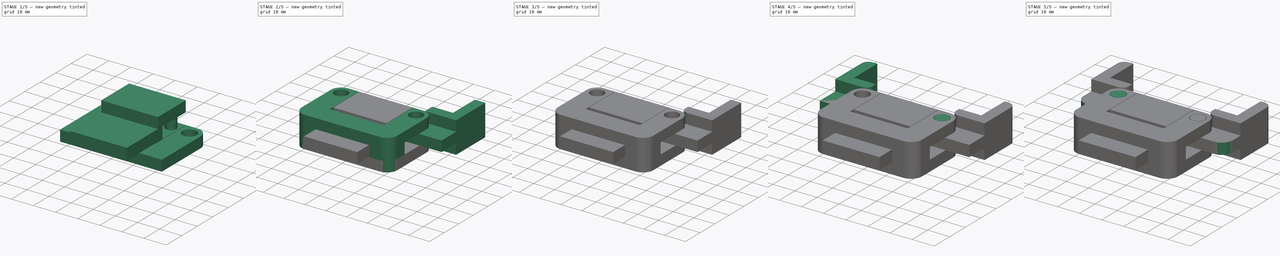
[diagram: build sequence overview — one tinted view per stage of 5, left to right]
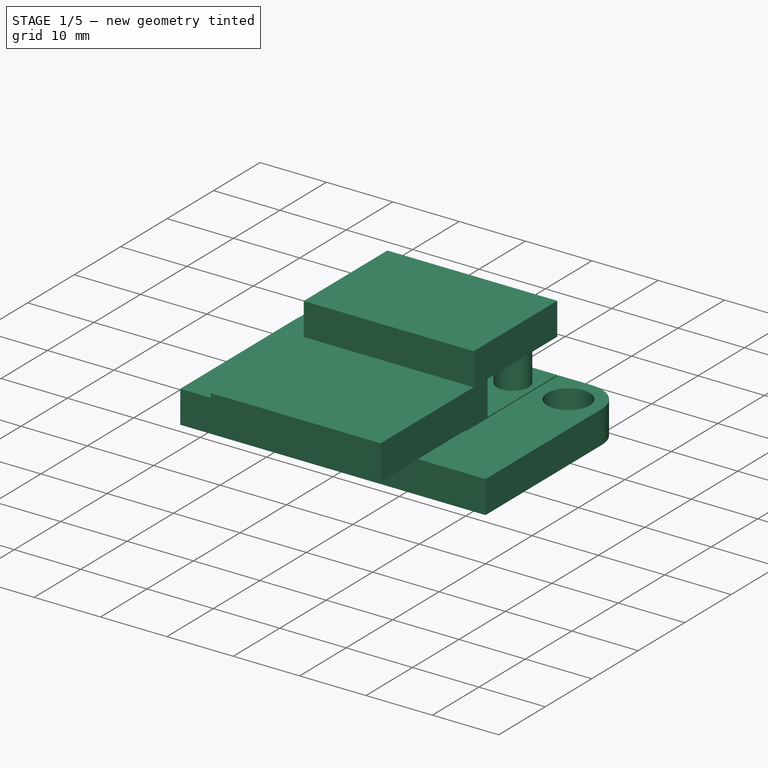
[diagram: stage 1 of 5 — iso view after this stage's code; geometry added in this stage tinted green]
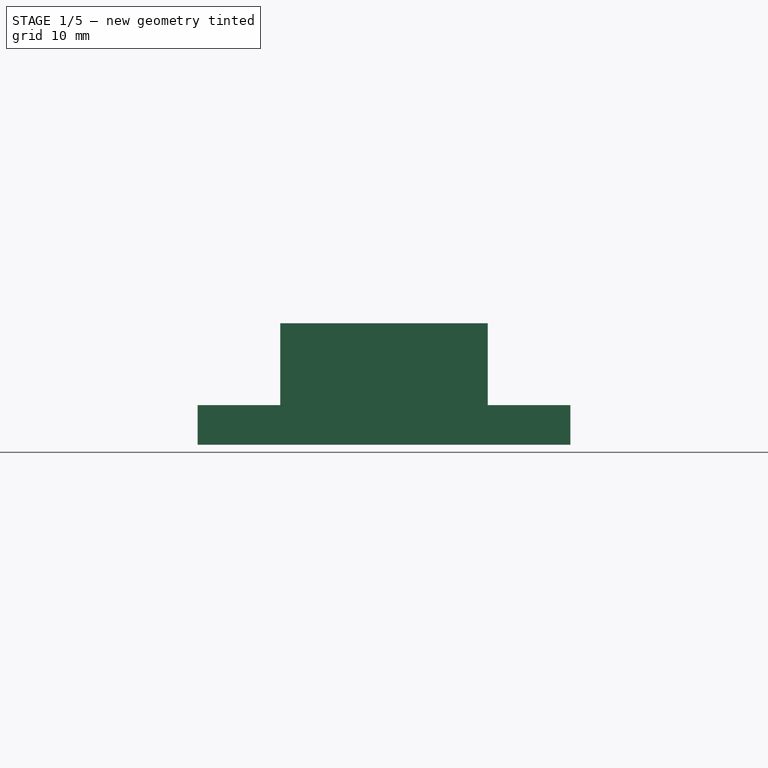
[diagram: stage 1 of 5 — front view after this stage's code; geometry added in this stage tinted green]
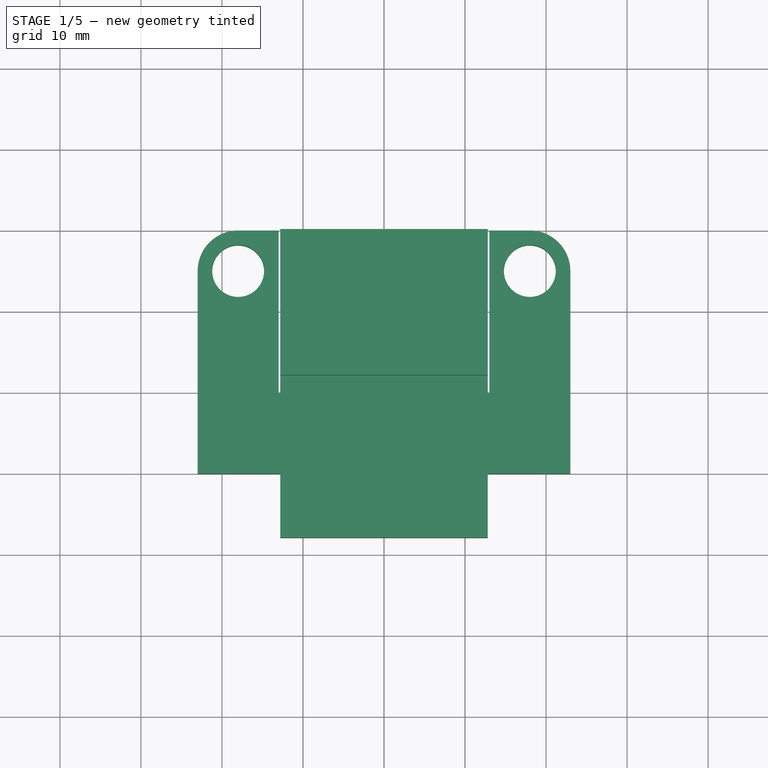
[diagram: stage 1 of 5 — top view after this stage's code; geometry added in this stage tinted green]
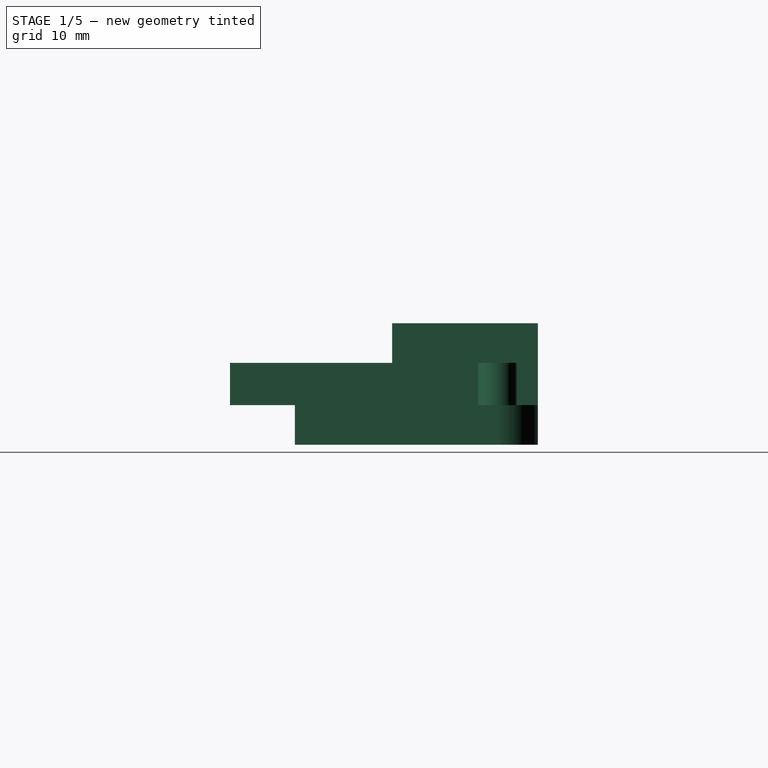
[diagram: stage 1 of 5 — right view after this stage's code; geometry added in this stage tinted green]
FCSTD DOCUMENT  (FreeCAD 0.15R4671 (Git))
Label: Claw
License: All rights reserved
LicenseURL: http://en.wikipedia.org/wiki/All_rights_reserved
objects: Sketcher::SketchObject×12, PartDesign::Pad×11, PartDesign::Fillet×6, Part::Cylinder×2, PartDesign::Pocket×2, Part::MultiFuse×1
note: 47 computed .brp shape members not serialized (recipe doc carries the construction recipe); baked Part::Feature solids carry a one-line shape summary decoded from their .brp

FEATURE [Sketcher::SketchObject] Sketch006
  sketch-geometry (12):
    g0: LineSegment StartX=-18 StartY=20 StartZ=0 EndX=-13 EndY=20 EndZ=0
    g1: LineSegment StartX=-13 StartY=20 StartZ=0 EndX=-13 EndY=0 EndZ=0
    g2: LineSegment StartX=-13 StartY=0 StartZ=0 EndX=13 EndY=0 EndZ=0
    g3: LineSegment StartX=13 StartY=0 StartZ=0 EndX=13 EndY=20 EndZ=0
    g4: LineSegment StartX=13 StartY=20 StartZ=0 EndX=18 EndY=20 EndZ=0
    g5: LineSegment StartX=23 StartY=15 StartZ=0 EndX=23 EndY=-10 EndZ=0
    g6: LineSegment StartX=23 StartY=-10 StartZ=0 EndX=-23 EndY=-10 EndZ=0
    g7: LineSegment StartX=-23 StartY=-10 StartZ=0 EndX=-23 EndY=15 EndZ=0
    g8: ArcOfCircle CenterX=-18 CenterY=15 CenterZ=0 NormalX=0 NormalY=0 NormalZ=1 Radius=5 StartAngle=1.5708 EndAngle=3.14159
    g9: ArcOfCircle CenterX=18 CenterY=15 CenterZ=0 NormalX=0 NormalY=0 NormalZ=1 Radius=5 StartAngle=0 EndAngle=1.5708
    g10: Circle CenterX=-18 CenterY=15 CenterZ=0 NormalX=0 NormalY=0 NormalZ=1 Radius=3.2
    g11: Circle CenterX=18 CenterY=15 CenterZ=0 NormalX=0 NormalY=0 NormalZ=1 Radius=3.2
  constraints (32):
    c: Coincident(g0,g1)
    c: Vertical(g1)
    c: Coincident(g1,g2)
    c: Horizontal(g2)
    c: Coincident(g2,g3)
    c: Vertical(g3)
    c: Coincident(g3,g4)
    c: Horizontal(g4)
    c: Vertical(g5)
    c: Coincident(g5,g6)
    c: Horizontal(g6)
    c: Coincident(g6,g7)
    c: Vertical(g7)
    c: Horizontal(g0)
    c: Symmetric(g1,g2,g-2)
    c: Equal(g1,g3)
    c: Equal(g0,g4)
    c: DistanceY(g-1,g3) = 20
    c: DistanceY(g5,g2) = 10
    c: DistanceX(g-1,g0) = -13
    c: Tangent(g7,g8) = 1.5708
    c: Tangent(g0,g8) = 1.5708
    c: Tangent(g4,g9) = 1.5708
    c: Tangent(g5,g9) = 1.5708
    c: Radius(g8) = 5
    c: DistanceX(g0) = 5
    c: Equal(g9,g8)
    c: Coincident(g10,g8)
    c: Coincident(g11,g9)
    c: Equal(g11,g10)
    c: Radius(g11) = 3.2
    c: PointOnObject(g2,g-1)
FEATURE [PartDesign::Pad] Pad004
  Length = 4.9
  Length2 = 100
  Sketch = -> Sketch006
  Type = 0
FEATURE [PartDesign::Pad] Pad008
  Length = 5.2
  Length2 = 100
  Type = 0
FEATURE [Sketcher::SketchObject] Sketch012
  Placement = pos=(0,0,10.1) rot=(0,0,1;0rad)
  Support = -> Pad008 [Face15]
  sketch-geometry (4):
    g0: LineSegment StartX=-12.8 StartY=20 StartZ=0 EndX=12.8 EndY=20 EndZ=0
    g1: LineSegment StartX=12.8 StartY=20 StartZ=0 EndX=12.8 EndY=2 EndZ=0
    g2: LineSegment StartX=12.8 StartY=2 StartZ=0 EndX=-12.8 EndY=2 EndZ=0
    g3: LineSegment StartX=-12.8 StartY=2 StartZ=0 EndX=-12.8 EndY=20 EndZ=0
  constraints (12):
    c: Coincident(g0,g1)
    c: Coincident(g1,g2)
    c: Coincident(g2,g3)
    c: Coincident(g3,g0)
    c: Horizontal(g0)
    c: Horizontal(g2)
    c: Vertical(g1)
    c: Vertical(g3)
    c: Symmetric(g0,g0,g-2)
    c: DistanceY(g-1,g0) = 20
    c: DistanceY(g-1,g1) = 2
    c: DistanceX(g0) = 25.6
FEATURE [PartDesign::Pad] Pad009
  Length = 4.9
  Length2 = 100
  Sketch = -> Sketch012
  Type = 0
FEATURE [PartDesign::Pad] Pad010
  Length = 20
  Length2 = 100
  Sketch = -> Sketch013
  Type = 0
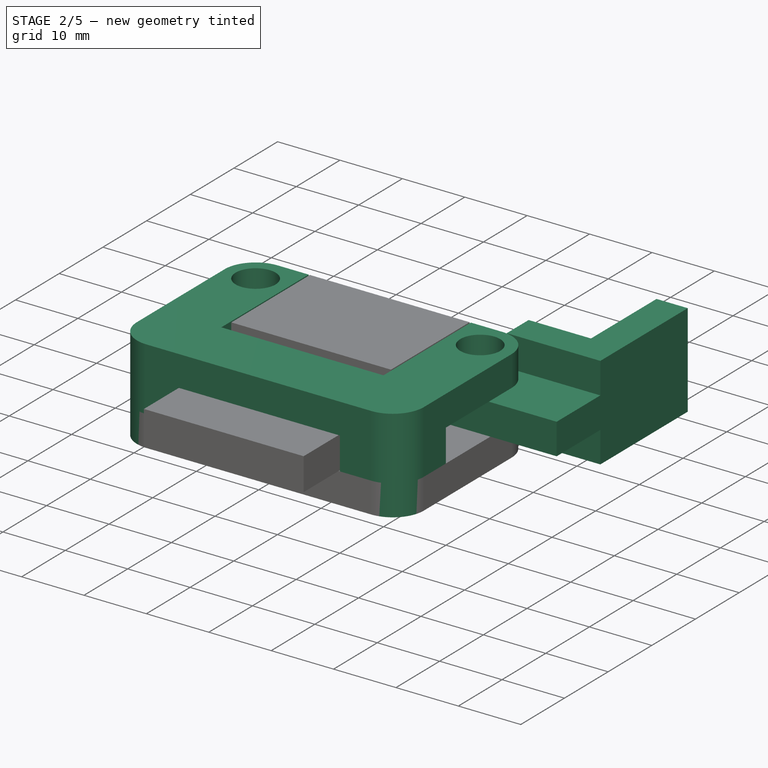
[diagram: stage 2 of 5 — iso view after this stage's code; geometry added in this stage tinted green]
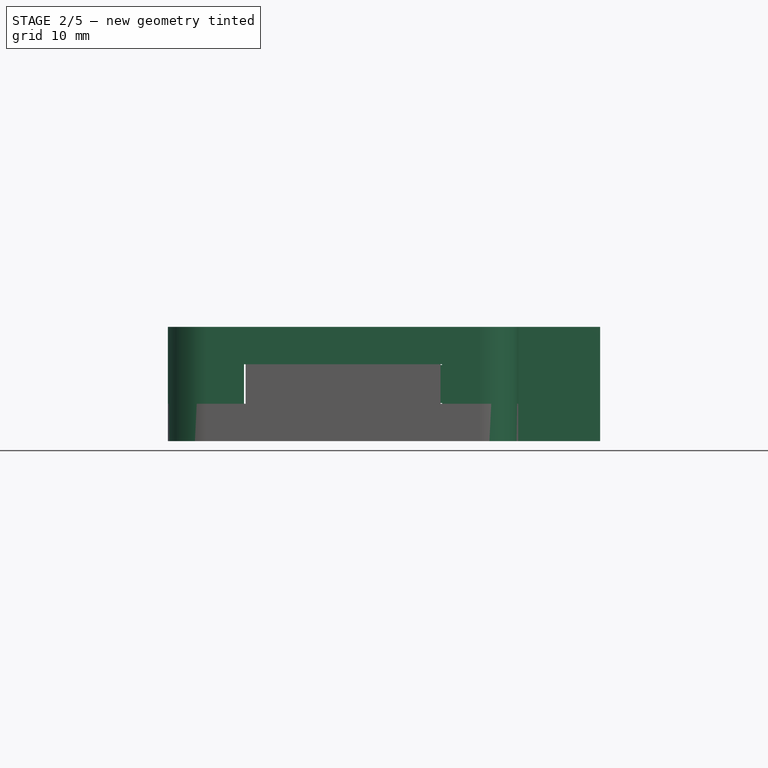
[diagram: stage 2 of 5 — front view after this stage's code; geometry added in this stage tinted green]
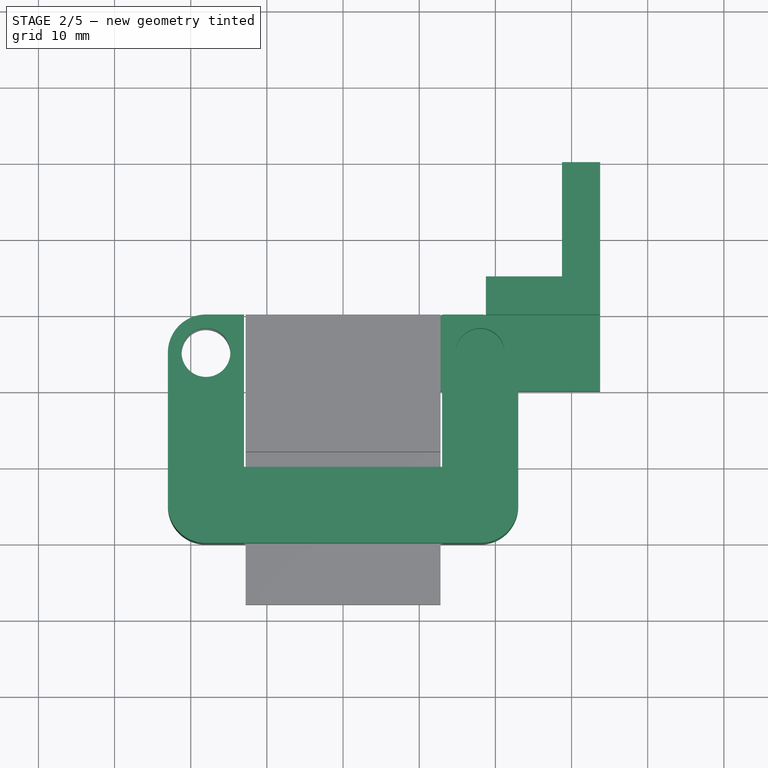
[diagram: stage 2 of 5 — top view after this stage's code; geometry added in this stage tinted green]
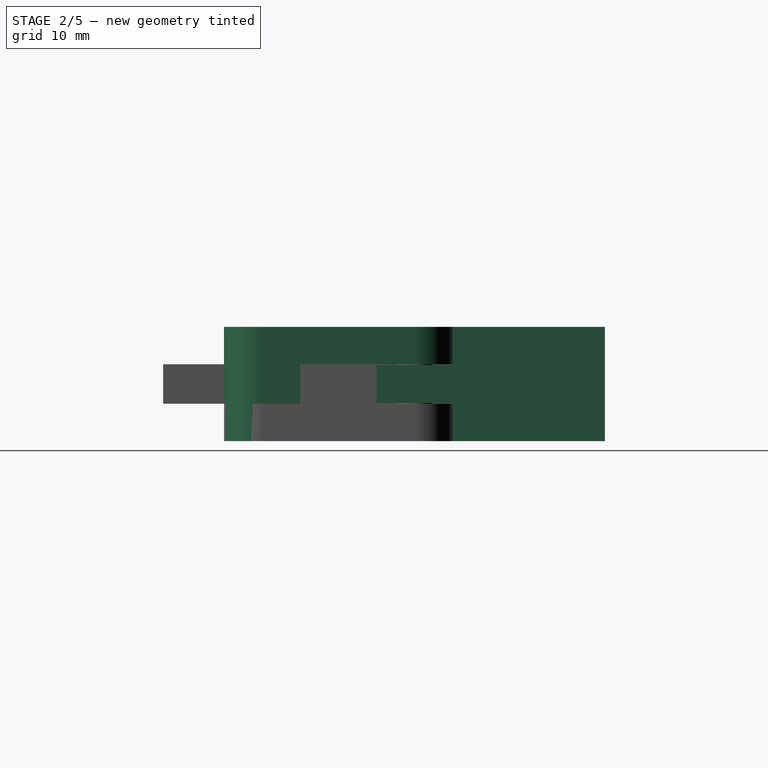
[diagram: stage 2 of 5 — right view after this stage's code; geometry added in this stage tinted green]
FEATURE [Sketcher::SketchObject] Sketch001
  sketch-geometry (6):
    g0: LineSegment StartX=18.75 StartY=25 StartZ=0 EndX=18.75 EndY=20 EndZ=0
    g1: LineSegment StartX=18.75 StartY=20 StartZ=0 EndX=33.75 EndY=20 EndZ=0
    g2: LineSegment StartX=33.75 StartY=20 StartZ=0 EndX=33.75 EndY=40 EndZ=0
    g3: LineSegment StartX=33.75 StartY=40 StartZ=0 EndX=28.75 EndY=40 EndZ=0
    g4: LineSegment StartX=28.75 StartY=40 StartZ=0 EndX=28.75 EndY=25 EndZ=0
    g5: LineSegment StartX=28.75 StartY=25 StartZ=0 EndX=18.75 EndY=25 EndZ=0
  constraints (18):
    c: Vertical(g0)
    c: Coincident(g0,g1)
    c: Horizontal(g1)
    c: Coincident(g1,g2)
    c: Vertical(g2)
    c: Coincident(g2,g3)
    c: Horizontal(g3)
    c: Coincident(g3,g4)
    c: Vertical(g4)
    c: Coincident(g4,g5)
    c: Horizontal(g5)
    c: Coincident(g0,g5)
    c: Equal(g0,g3)
    c: DistanceX(g-1,g4) = 28.75
    c: DistanceY(g0,g0) = 5
    c: DistanceX(g0,g4) = 10
    c: DistanceY(g4,g3) = 15
    c: DistanceY(g-1,g0) = 20
FEATURE [PartDesign::Pad] Pad001
  Length = 15
  Length2 = 100
  Sketch = -> Sketch001
  Type = 0
FEATURE [Sketcher::SketchObject] Sketch003
  ExternalGeometry = -> [Pad001]
  Placement = pos=(0,20,0) rot=(1,0,0;1.5708rad)
  Support = -> Pad001 [Face2]
  sketch-geometry (4):
    g0: LineSegment StartX=33.75 StartY=10 StartZ=0 EndX=5 EndY=10 EndZ=0
    g1: LineSegment StartX=5 StartY=10 StartZ=0 EndX=5 EndY=5 EndZ=0
    g2: LineSegment StartX=5 StartY=5 StartZ=0 EndX=33.75 EndY=5 EndZ=0
    g3: LineSegment StartX=33.75 StartY=5 StartZ=0 EndX=33.75 EndY=10 EndZ=0
  constraints (12):
    c: Coincident(g0,g1)
    c: Coincident(g1,g2)
    c: Coincident(g2,g3)
    c: Coincident(g3,g0)
    c: Horizontal(g0)
    c: Horizontal(g2)
    c: Vertical(g1)
    c: Vertical(g3)
    c: PointOnObject(g0,g-3)
    c: DistanceY(g1) = -5
    c: DistanceY(g2,g-3) = -5
    c: DistanceX(g-1,g0) = 5
FEATURE [PartDesign::Pad] Pad003
  Length = 10
  Length2 = 100
  Sketch = -> Sketch003
  Type = 0
FEATURE [Sketcher::SketchObject] Sketch009
  sketch-geometry (4):
    g0: LineSegment StartX=-12.8 StartY=20 StartZ=0 EndX=12.8 EndY=20 EndZ=0
    g1: LineSegment StartX=12.8 StartY=20 StartZ=0 EndX=12.8 EndY=2 EndZ=0
    g2: LineSegment StartX=12.8 StartY=2 StartZ=0 EndX=-12.8 EndY=2 EndZ=0
    g3: LineSegment StartX=-12.8 StartY=2 StartZ=0 EndX=-12.8 EndY=20 EndZ=0
  constraints (12):
    c: Coincident(g0,g1)
    c: Coincident(g1,g2)
    c: Coincident(g2,g3)
    c: Coincident(g3,g0)
    c: Horizontal(g0)
    c: Horizontal(g2)
    c: Vertical(g1)
    c: Vertical(g3)
    c: Symmetric(g0,g0,g-2)
    c: DistanceY(g-1,g0) = 20
    c: DistanceY(g-1,g1) = 2
    c: DistanceX(g0) = 25.6
FEATURE [PartDesign::Pad] Pad005
  Length = 5.2
  Length2 = 100
  Sketch = -> Sketch007
  Type = 0
FEATURE [Sketcher::SketchObject] Sketch010
  Placement = pos=(0,0,10.1) rot=(0,0,1;0rad)
  Support = -> Pad005 [Face25]
  sketch-geometry (12):
    g0: LineSegment StartX=-18 StartY=20 StartZ=0 EndX=-13 EndY=20 EndZ=0
    g1: LineSegment StartX=-13 StartY=20 StartZ=0 EndX=-13 EndY=0 EndZ=0
    g2: LineSegment StartX=-13 StartY=0 StartZ=0 EndX=13 EndY=0 EndZ=0
    g3: LineSegment StartX=13 StartY=0 StartZ=0 EndX=13 EndY=20 EndZ=0
    g4: LineSegment StartX=13 StartY=20 StartZ=0 EndX=18 EndY=20 EndZ=0
    g5: LineSegment StartX=23 StartY=15 StartZ=0 EndX=23 EndY=-10 EndZ=0
    g6: LineSegment StartX=23 StartY=-10 StartZ=0 EndX=-23 EndY=-10 EndZ=0
    g7: LineSegment StartX=-23 StartY=-10 StartZ=0 EndX=-23 EndY=15 EndZ=0
    g8: ArcOfCircle CenterX=-18 CenterY=15 CenterZ=0 NormalX=0 NormalY=0 NormalZ=1 Radius=5 StartAngle=1.5708 EndAngle=3.14159
    g9: ArcOfCircle CenterX=18 CenterY=15 CenterZ=0 NormalX=0 NormalY=0 NormalZ=1 Radius=5 StartAngle=0 EndAngle=1.5708
    g10: Circle CenterX=-18 CenterY=15 CenterZ=0 NormalX=0 NormalY=0 NormalZ=1 Radius=3.2
    g11: Circle CenterX=18 CenterY=15 CenterZ=0 NormalX=0 NormalY=0 NormalZ=1 Radius=3.2
  constraints (32):
    c: Coincident(g0,g1)
    c: Vertical(g1)
    c: Coincident(g1,g2)
    c: Horizontal(g2)
    c: Coincident(g2,g3)
    c: Vertical(g3)
    c: Coincident(g3,g4)
    c: Horizontal(g4)
    c: Vertical(g5)
    c: Coincident(g5,g6)
    c: Horizontal(g6)
    c: Coincident(g6,g7)
    c: Vertical(g7)
    c: Horizontal(g0)
    c: Symmetric(g1,g2,g-2)
    c: Equal(g1,g3)
    c: Equal(g0,g4)
    c: DistanceY(g-1,g3) = 20
    c: DistanceY(g5,g2) = 10
    c: DistanceX(g-1,g0) = -13
    c: Tangent(g7,g8) = 1.5708
    c: Tangent(g0,g8) = 1.5708
    c: Tangent(g4,g9) = 1.5708
    c: Tangent(g5,g9) = 1.5708
    c: Radius(g8) = 5
    c: DistanceX(g0) = 5
    c: Equal(g9,g8)
    c: Coincident(g10,g8)
    c: Coincident(g11,g9)
    c: Equal(g11,g10)
    c: Radius(g11) = 3.2
    c: PointOnObject(g2,g-1)
FEATURE [PartDesign::Pad] Pad006  label="Arms pre1"
  Length = 4.9
  Length2 = 100
  Sketch = -> Sketch010
  Type = 0
FEATURE [PartDesign::Fillet] Fillet005  label="Arms"
  Base = -> Pad006 [Edge57,Edge30,Edge7,Edge25,Edge53,Edge68]
  Radius = 5
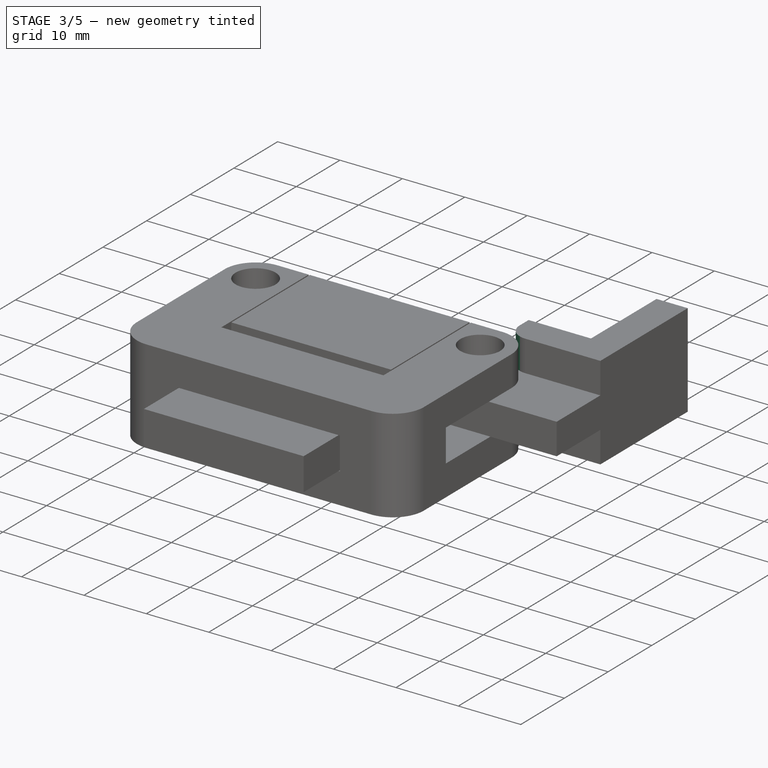
[diagram: stage 3 of 5 — iso view after this stage's code; geometry added in this stage tinted green]
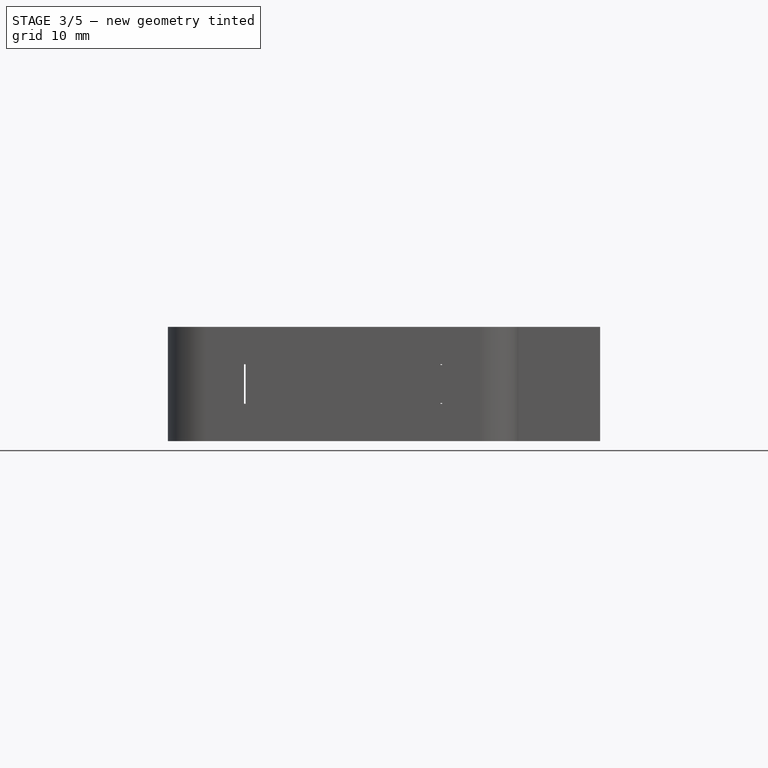
[diagram: stage 3 of 5 — front view after this stage's code; geometry added in this stage tinted green]
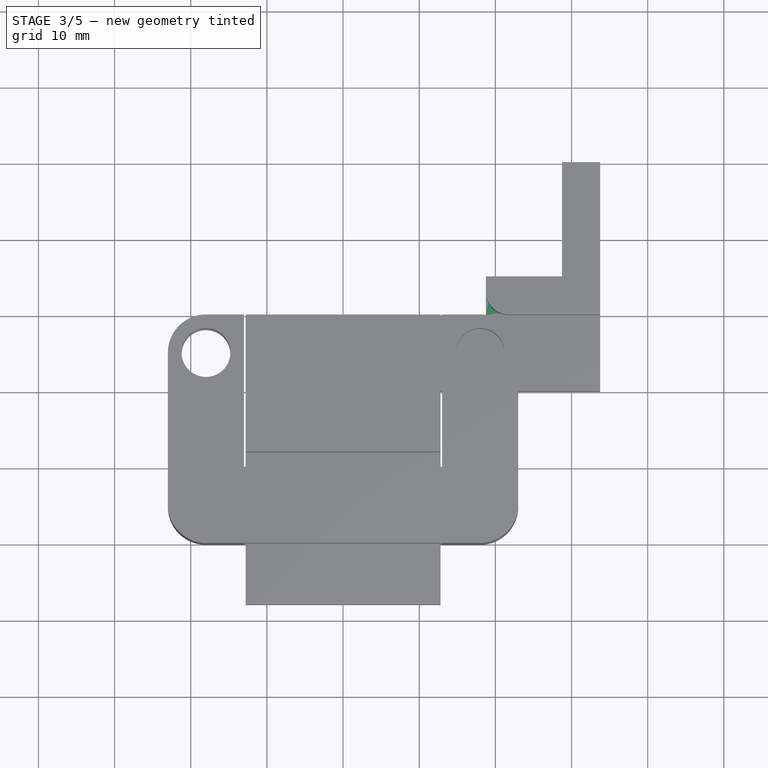
[diagram: stage 3 of 5 — top view after this stage's code; geometry added in this stage tinted green]
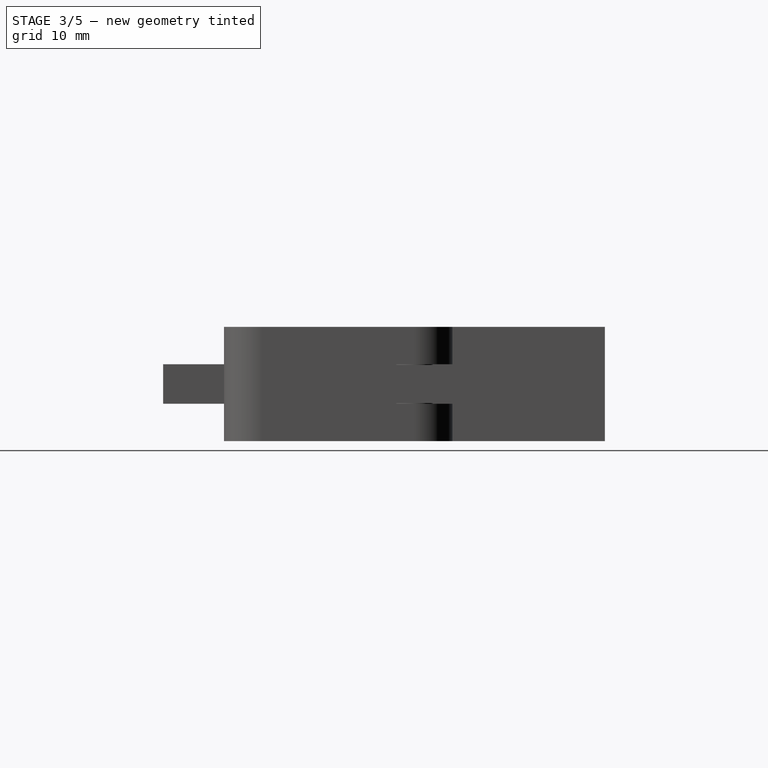
[diagram: stage 3 of 5 — right view after this stage's code; geometry added in this stage tinted green]
FEATURE [Sketcher::SketchObject] Sketch
  sketch-geometry (6):
    g0: LineSegment StartX=-28.75 StartY=40 StartZ=0 EndX=-28.75 EndY=25 EndZ=0
    g1: LineSegment StartX=-28.75 StartY=25 StartZ=0 EndX=-18.75 EndY=25 EndZ=0
    g2: LineSegment StartX=-33.75 StartY=40 StartZ=0 EndX=-28.75 EndY=40 EndZ=0
    g3: LineSegment StartX=-33.75 StartY=40 StartZ=0 EndX=-33.75 EndY=20 EndZ=0
    g4: LineSegment StartX=-33.75 StartY=20 StartZ=0 EndX=-18.75 EndY=20 EndZ=0
    g5: LineSegment StartX=-18.75 StartY=25 StartZ=0 EndX=-18.75 EndY=20 EndZ=0
  constraints (18):
    c: Vertical(g0)
    c: Coincident(g0,g1)
    c: Horizontal(g1)
    c: Coincident(g2,g0)
    c: Horizontal(g2)
    c: DistanceY(g0) = -15
    c: DistanceX(g2) = 5
    c: DistanceX(g1) = 10
    c: Coincident(g3,g2)
    c: Vertical(g3)
    c: Coincident(g4,g3)
    c: Horizontal(g4)
    c: Coincident(g5,g1)
    c: Coincident(g5,g4)
    c: Vertical(g5)
    c: Equal(g2,g5)
    c: DistanceY(g-1,g4) = 20
    c: DistanceX(g-1,g0) = -28.75
FEATURE [PartDesign::Pad] Pad
  Length = 15
  Length2 = 100
  Sketch = -> Sketch
  Type = 0
FEATURE [Sketcher::SketchObject] Sketch002
  ExternalGeometry = -> [Pad]
  Placement = pos=(0,20,0) rot=(1,0,0;1.5708rad)
  Support = -> Pad [Face4]
  sketch-geometry (4):
    g0: LineSegment StartX=-33.75 StartY=10 StartZ=0 EndX=-5 EndY=10 EndZ=0
    g1: LineSegment StartX=-5 StartY=10 StartZ=0 EndX=-5 EndY=5 EndZ=0
    g2: LineSegment StartX=-5 StartY=5 StartZ=0 EndX=-33.75 EndY=5 EndZ=0
    g3: LineSegment StartX=-33.75 StartY=5 StartZ=0 EndX=-33.75 EndY=10 EndZ=0
  constraints (12):
    c: Coincident(g0,g1)
    c: Coincident(g1,g2)
    c: Coincident(g2,g3)
    c: Coincident(g3,g0)
    c: Horizontal(g0)
    c: Horizontal(g2)
    c: Vertical(g1)
    c: Vertical(g3)
    c: PointOnObject(g0,g-3)
    c: DistanceY(g1) = -5
    c: DistanceY(g2,g-3) = -5
    c: DistanceX(g-1,g0) = -5
FEATURE [PartDesign::Pad] Pad002
  Length = 10
  Length2 = 100
  Sketch = -> Sketch002
  Type = 0
FEATURE [Sketcher::SketchObject] Sketch005
  ExternalGeometry = -> [Pad002]
  Placement = pos=(0,0,10) rot=(0,0,1;0rad)
  Support = -> Pad003 [Face12]
  sketch-geometry (8):
    g0: LineSegment StartX=12.5 StartY=17.6 StartZ=0 EndX=12.5 EndY=12.4 EndZ=0
    g1: LineSegment StartX=12.5 StartY=12.4 StartZ=0 EndX=-12.5 EndY=12.4 EndZ=0
    g2: LineSegment StartX=-12.5 StartY=12.4 StartZ=0 EndX=-12.5 EndY=17.6 EndZ=0
    g3: LineSegment StartX=-12.5 StartY=17.6 StartZ=0 EndX=-8 EndY=17.6 EndZ=0
    g4: LineSegment StartX=-8 StartY=17.6 StartZ=0 EndX=-8 EndY=21.6 EndZ=0
    g5: LineSegment StartX=-8 StartY=21.6 StartZ=0 EndX=8 EndY=21.6 EndZ=0
    g6: LineSegment StartX=8 StartY=21.6 StartZ=0 EndX=8 EndY=17.6 EndZ=0
    g7: LineSegment StartX=8 StartY=17.6 StartZ=0 EndX=12.5 EndY=17.6 EndZ=0
  constraints (23):
    c: Coincident(g0,g1)
    c: Coincident(g1,g2)
    c: Horizontal(g1)
    c: Vertical(g0)
    c: Vertical(g2)
    c: DistanceY(g2) = 5.2
    c: Symmetric(g2,g0,g-2)
    c: DistanceY(g-1,g0) = 12.4
    c: Coincident(g2,g3)
    c: Horizontal(g3)
    c: Coincident(g3,g4)
    c: Vertical(g4)
    c: Coincident(g4,g5)
    c: Horizontal(g5)
    c: Coincident(g5,g6)
    c: Vertical(g6)
    c: Coincident(g6,g7)
    c: Coincident(g7,g0)
    c: Horizontal(g7)
    c: Symmetric(g4,g5,g-2)
    c: DistanceX(g5) = 16
    c: DistanceX(g1,g0) = 25
    c: DistanceY(g4) = 4
FEATURE [PartDesign::Pocket] Pocket001
  Length = 5
  Sketch = -> Sketch005
  Type = 1
FEATURE [PartDesign::Fillet] Fillet001
  Base = -> Pocket001 [Edge10,Edge11]
  Radius = 3
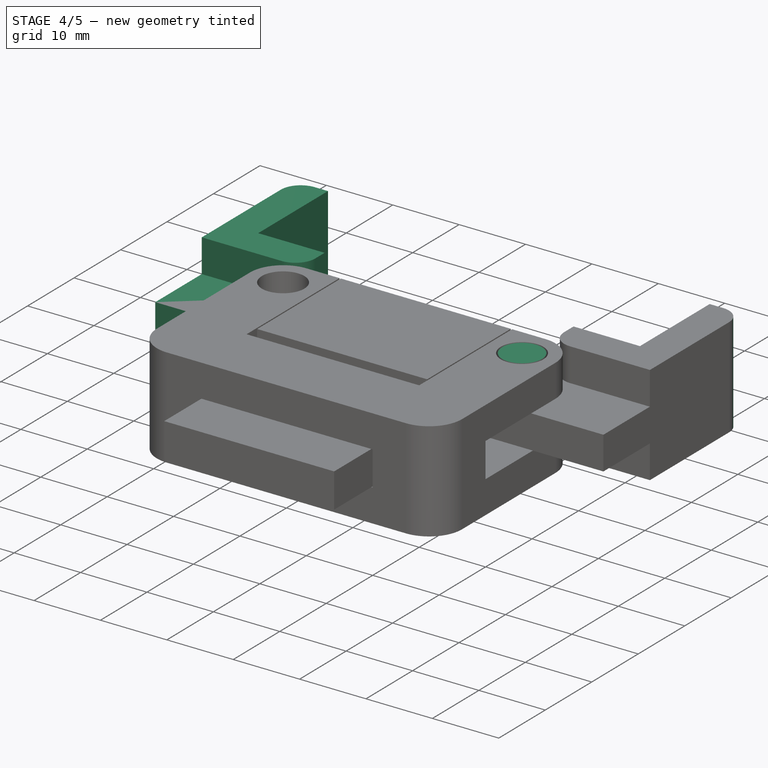
[diagram: stage 4 of 5 — iso view after this stage's code; geometry added in this stage tinted green]
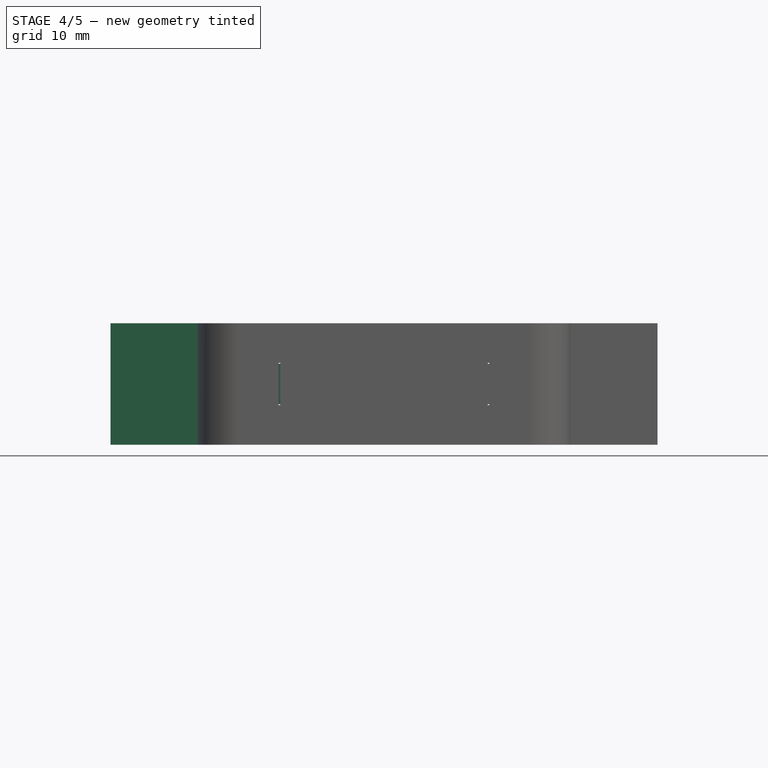
[diagram: stage 4 of 5 — front view after this stage's code; geometry added in this stage tinted green]
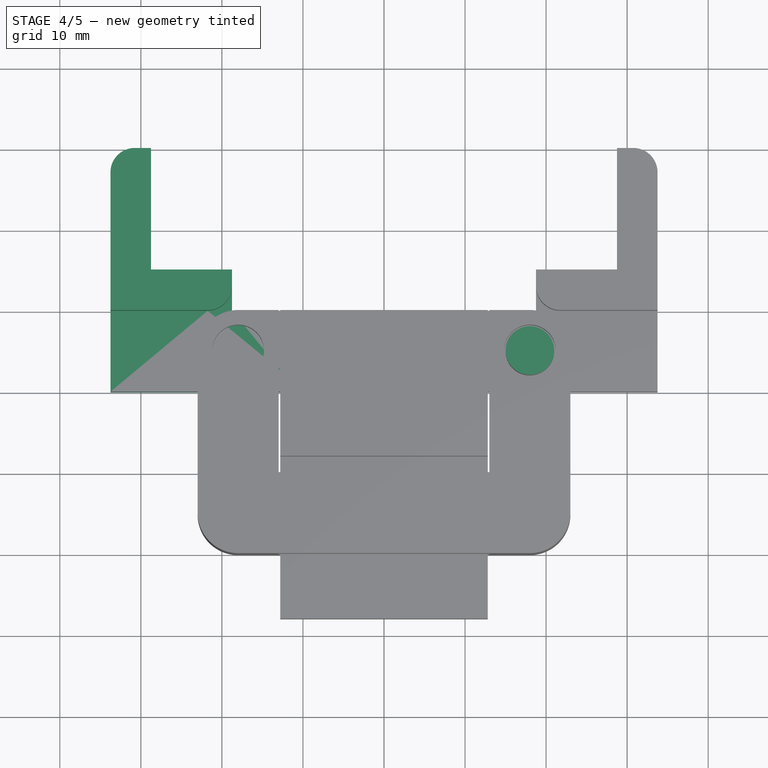
[diagram: stage 4 of 5 — top view after this stage's code; geometry added in this stage tinted green]
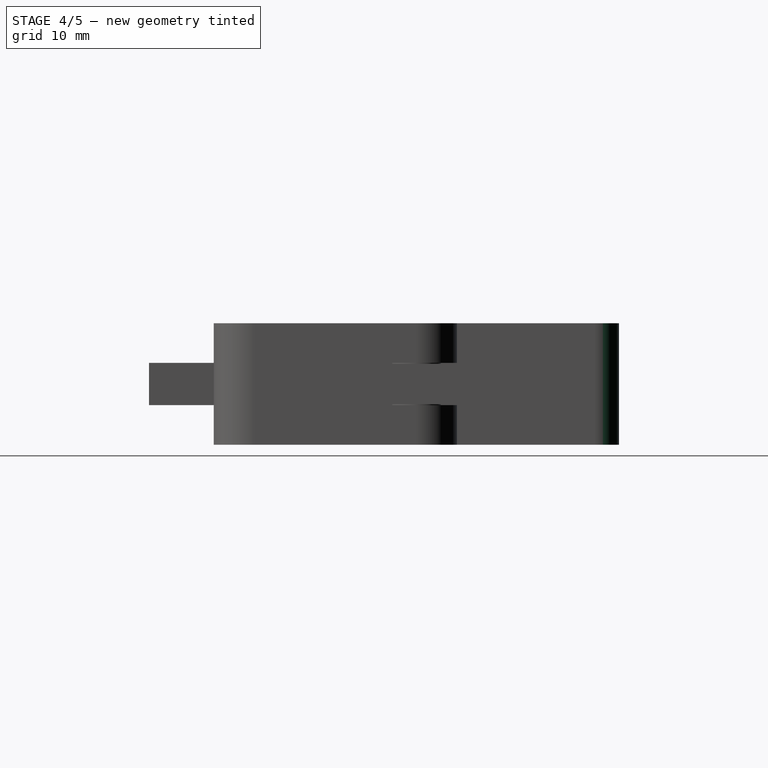
[diagram: stage 4 of 5 — right view after this stage's code; geometry added in this stage tinted green]
FEATURE [Part::Cylinder] Cylinder001
  Angle = 360
  Height = 15
  Placement = pos=(18,15,0) rot=(0,0,1;0rad)
  Radius = 3
FEATURE [Sketcher::SketchObject] Sketch004
  ExternalGeometry = -> [Pad002]
  Placement = pos=(0,0,10) rot=(0,0,1;0rad)
  Support = -> Pad002 [Face13]
  sketch-geometry (8):
    g0: LineSegment StartX=12.5 StartY=17.6 StartZ=0 EndX=12.5 EndY=12.4 EndZ=0
    g1: LineSegment StartX=12.5 StartY=12.4 StartZ=0 EndX=-12.5 EndY=12.4 EndZ=0
    g2: LineSegment StartX=-12.5 StartY=12.4 StartZ=0 EndX=-12.5 EndY=17.6 EndZ=0
    g3: LineSegment StartX=-12.5 StartY=17.6 StartZ=0 EndX=-8 EndY=17.6 EndZ=0
    g4: LineSegment StartX=-8 StartY=17.6 StartZ=0 EndX=-8 EndY=21.6 EndZ=0
    g5: LineSegment StartX=-8 StartY=21.6 StartZ=0 EndX=8 EndY=21.6 EndZ=0
    g6: LineSegment StartX=8 StartY=21.6 StartZ=0 EndX=8 EndY=17.6 EndZ=0
    g7: LineSegment StartX=8 StartY=17.6 StartZ=0 EndX=12.5 EndY=17.6 EndZ=0
  constraints (23):
    c: Coincident(g0,g1)
    c: Coincident(g1,g2)
    c: Horizontal(g1)
    c: Vertical(g0)
    c: Vertical(g2)
    c: DistanceY(g2) = 5.2
    c: Symmetric(g2,g0,g-2)
    c: DistanceY(g-1,g0) = 12.4
    c: Coincident(g3,g2)
    c: Horizontal(g3)
    c: Coincident(g4,g3)
    c: Vertical(g4)
    c: Coincident(g5,g4)
    c: Horizontal(g5)
    c: Coincident(g6,g5)
    c: Vertical(g6)
    c: Coincident(g7,g6)
    c: Horizontal(g7)
    c: Coincident(g0,g7)
    c: Symmetric(g4,g5,g-2)
    c: DistanceY(g4) = 4
    c: DistanceX(g2,g0) = 25
    c: DistanceX(g5) = 16
FEATURE [PartDesign::Pocket] Pocket
  Length = 5
  Sketch = -> Sketch004
  Type = 1
FEATURE [PartDesign::Fillet] Fillet
  Base = -> Pocket [Edge21,Edge20]
  Radius = 3
FEATURE [PartDesign::Fillet] Fillet002
  Base = -> Fillet [Edge23]
  Radius = 3
FEATURE [PartDesign::Fillet] Fillet003
  Base = -> Fillet001 [Edge48]
  Radius = 3
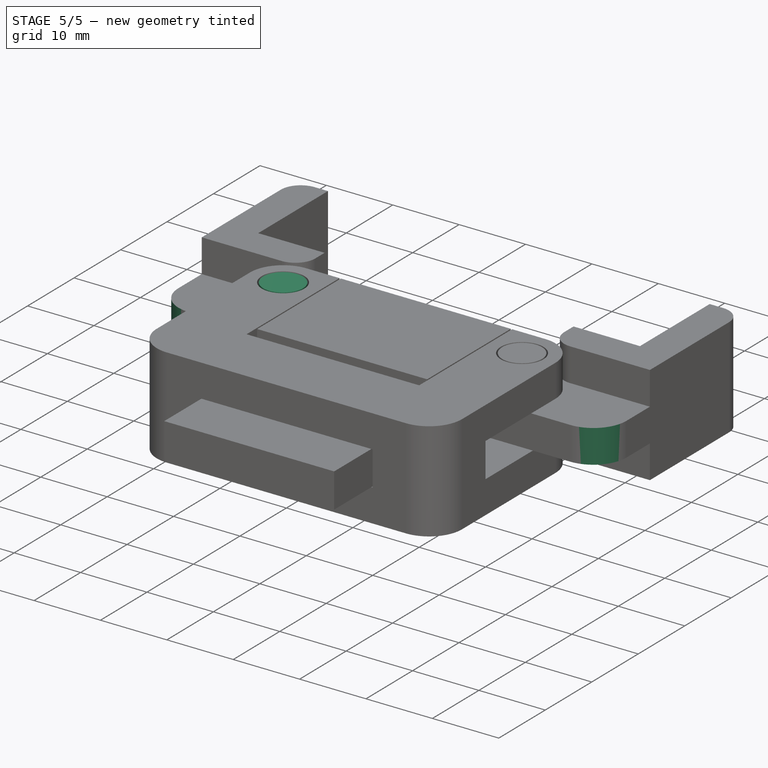
[diagram: stage 5 of 5 — iso view after this stage's code; geometry added in this stage tinted green]
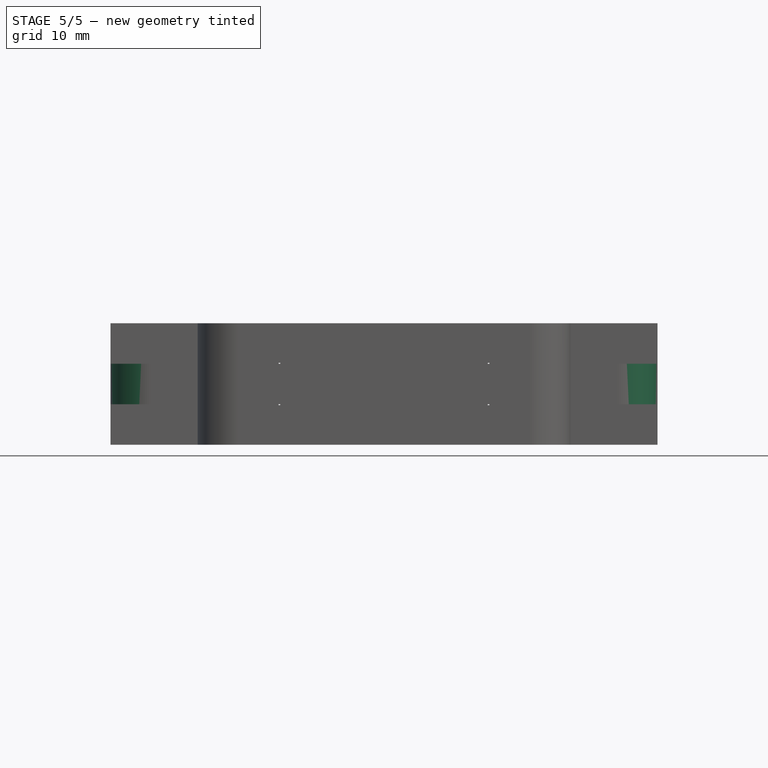
[diagram: stage 5 of 5 — front view after this stage's code; geometry added in this stage tinted green]
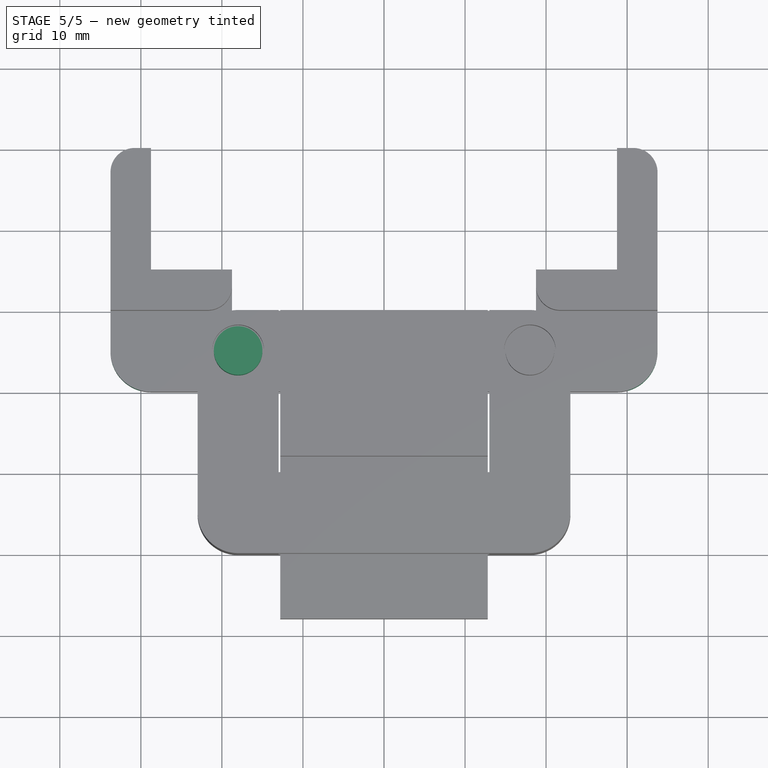
[diagram: stage 5 of 5 — top view after this stage's code; geometry added in this stage tinted green]
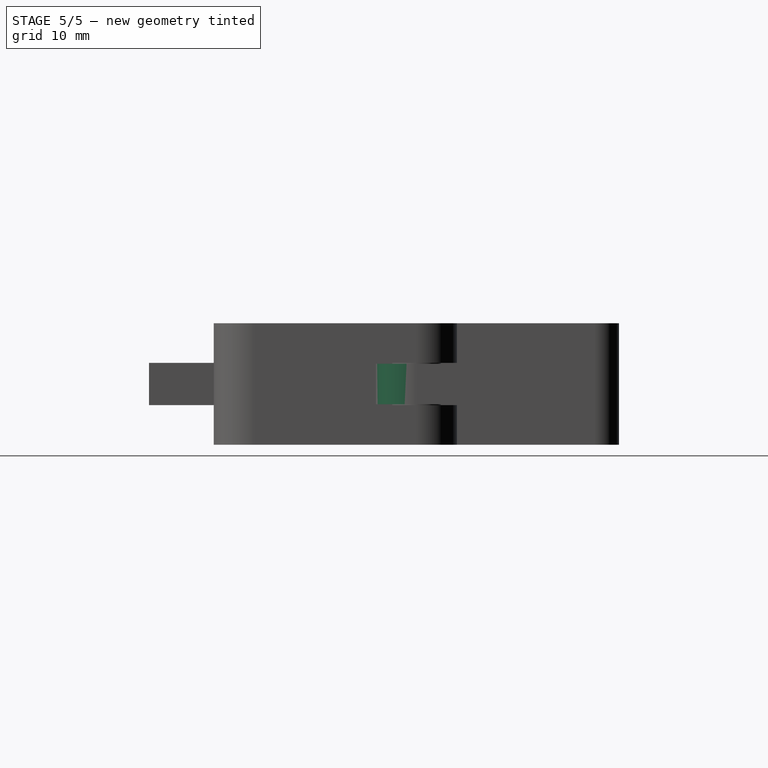
[diagram: stage 5 of 5 — right view after this stage's code; geometry added in this stage tinted green]
FEATURE [Part::Cylinder] Cylinder
  Angle = 360
  Height = 15
  Placement = pos=(-18,15,0) rot=(0,0,1;0rad)
  Radius = 3
FEATURE [Sketcher::SketchObject] Sketch007
  ExternalGeometry = -> [Pad004]
  Placement = pos=(0,0,4.9) rot=(0,0,1;0rad)
  Support = -> Pad004 [Face14]
  sketch-geometry (8):
    g0: LineSegment StartX=-23 StartY=0 StartZ=0 EndX=-13 EndY=0 EndZ=0
    g1: LineSegment StartX=-13 StartY=0 StartZ=0 EndX=-13 EndY=-10 EndZ=0
    g2: LineSegment StartX=-13 StartY=-10 StartZ=0 EndX=-23 EndY=-10 EndZ=0
    g3: LineSegment StartX=-23 StartY=-10 StartZ=0 EndX=-23 EndY=0 EndZ=0
    g4: LineSegment StartX=13 StartY=0 StartZ=0 EndX=23 EndY=0 EndZ=0
    g5: LineSegment StartX=23 StartY=0 StartZ=0 EndX=23 EndY=-10 EndZ=0
    g6: LineSegment StartX=23 StartY=-10 StartZ=0 EndX=13 EndY=-10 EndZ=0
    g7: LineSegment StartX=13 StartY=-10 StartZ=0 EndX=13 EndY=0 EndZ=0
  constraints (20):
    c: Coincident(g0,g1)
    c: Coincident(g1,g2)
    c: Coincident(g2,g3)
    c: Coincident(g3,g0)
    c: Horizontal(g0)
    c: Horizontal(g2)
    c: Vertical(g1)
    c: Vertical(g3)
    c: Coincident(g4,g5)
    c: Coincident(g5,g6)
    c: Coincident(g6,g7)
    c: Coincident(g7,g4)
    c: Horizontal(g4)
    c: Horizontal(g6)
    c: Vertical(g5)
    c: Vertical(g7)
    c: Coincident(g2,g-3)
    c: Coincident(g0,g-4)
    c: Coincident(g4,g-4)
    c: Coincident(g5,g-3)
FEATURE [Part::MultiFuse] Fusion  label="Claws pre1"
  Shapes = -> [Cylinder,Cylinder001,Fillet002,Fillet003]
FEATURE [PartDesign::Pad] Pad007
  Length = 4.9
  Length2 = 100
  Sketch = -> Sketch009
  Type = 0
FEATURE [Sketcher::SketchObject] Sketch013
  ExternalGeometry = -> [Pad009]
  Placement = pos=(0,2,0) rot=(1,0,0;1.5708rad)
  Support = -> Pad009 [Face10]
  sketch-geometry (4):
    g0: LineSegment StartX=-12.8 StartY=10.1 StartZ=0 EndX=12.8 EndY=10.1 EndZ=0
    g1: LineSegment StartX=12.8 StartY=10.1 StartZ=0 EndX=12.8 EndY=4.9 EndZ=0
    g2: LineSegment StartX=12.8 StartY=4.9 StartZ=0 EndX=-12.8 EndY=4.9 EndZ=0
    g3: LineSegment StartX=-12.8 StartY=4.9 StartZ=0 EndX=-12.8 EndY=10.1 EndZ=0
  constraints (10):
    c: Coincident(g0,g1)
    c: Coincident(g1,g2)
    c: Coincident(g2,g3)
    c: Coincident(g3,g0)
    c: Horizontal(g0)
    c: Horizontal(g2)
    c: Vertical(g1)
    c: Vertical(g3)
    c: Coincident(g0,g-3)
    c: Coincident(g1,g-4)
FEATURE [PartDesign::Fillet] Fillet004  label="Claws"
  Base = -> Fusion [Edge22,Edge86]
  Radius = 5
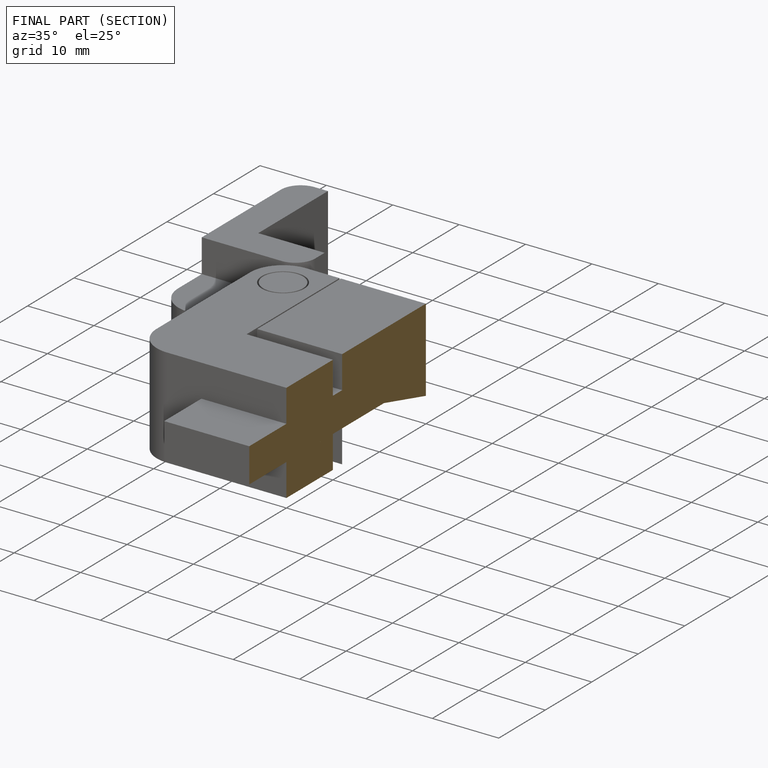
[diagram: finished part — half-section view (interior)]
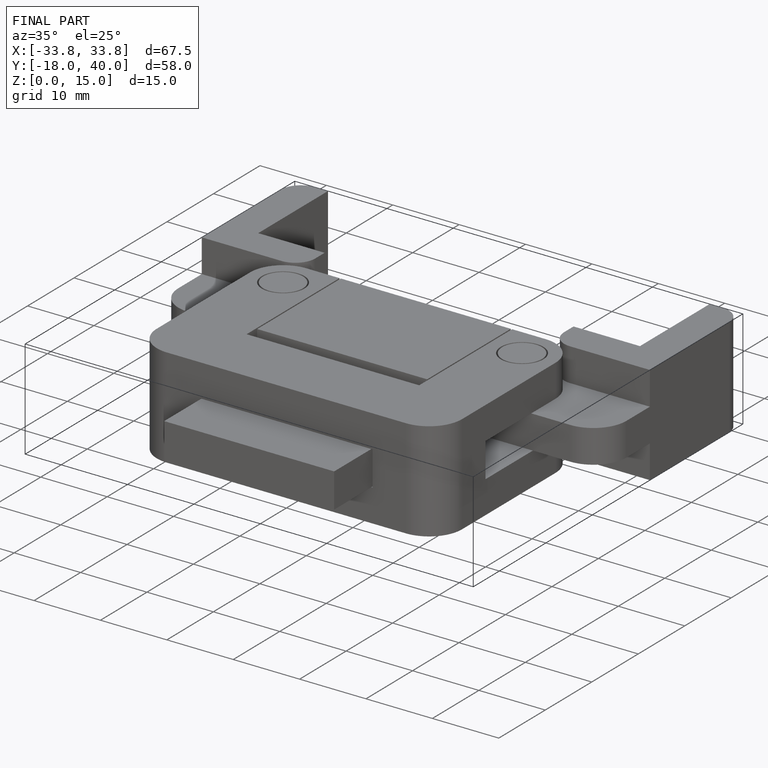
[diagram: finished part — iso view with bounding-box wireframe]
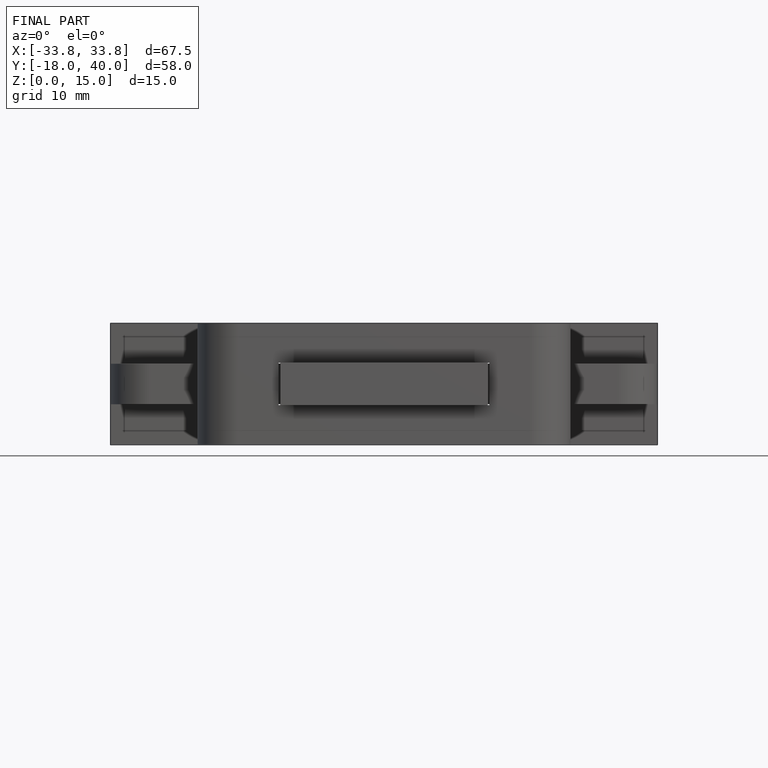
[diagram: finished part — front view with bounding-box wireframe]
